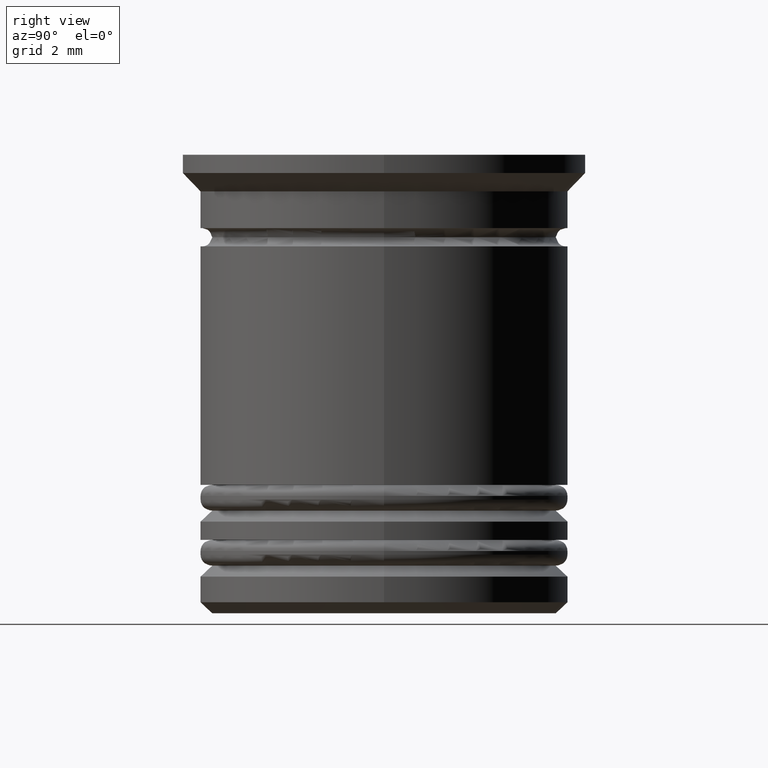
[diagram: clean part render]
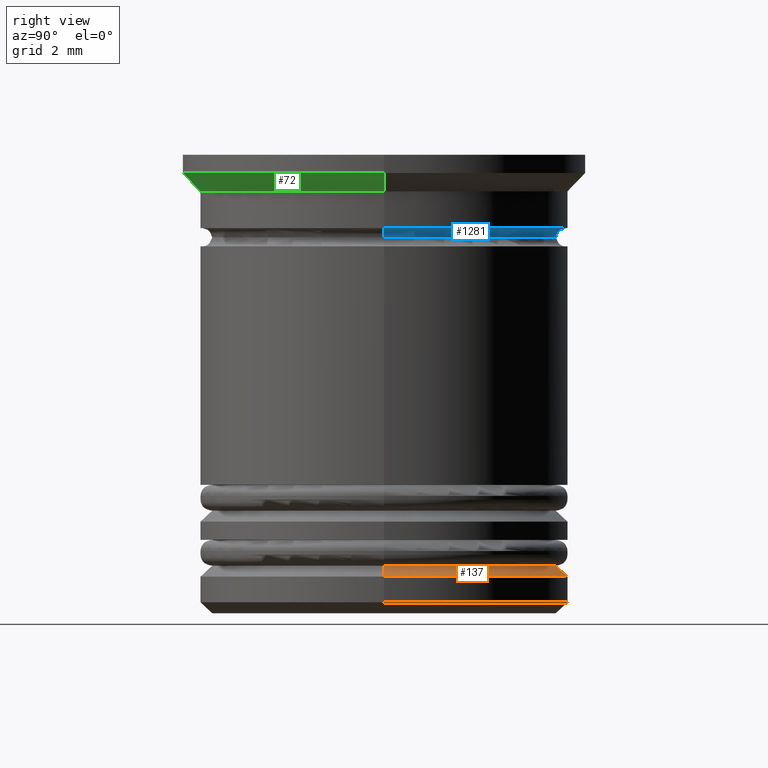
[diagram: same view with three faces highlighted in distinct colors, each labeled with its STEP entity id]
A machine part, right view with three faces highlighted in distinct colors.
Their STEP definitions:

[orange] entity #137 — the highlighted conical surface has half-angle 45 deg.
#82 = EDGE_LOOP ( 'NONE', ( #812, #1409, #1275, #1447 ) ) ;
#137 = ADVANCED_FACE ( 'NONE', ( #1843 ), #2029, .T. ) ;
#156 = VECTOR ( 'NONE', #1939, 1000.000000000000000 ) ;
#166 = LINE ( 'NONE', #1321, #762 ) ;
#205 = CARTESIAN_POINT ( 'NONE',  ( 0.000000000000000000, 0.000000000000000000, -11.20000000000000817 ) ) ;
#301 = CARTESIAN_POINT ( 'NONE',  ( 5.000000000000000888, 0.000000000000000000, -11.50000000000000533 ) ) ;
#317 = CARTESIAN_POINT ( 'NONE',  ( -4.700000000000001066, 5.755839955992560641E-16, -11.20000000000000817 ) ) ;
#392 = CARTESIAN_POINT ( 'NONE',  ( 0.000000000000000000, 0.000000000000000000, -11.00000000000000178 ) ) ;
#435 = EDGE_CURVE ( 'NONE', #1457, #1701, #474, .T. ) ;
#456 = CIRCLE ( 'NONE', #1904, 4.700000000000001066 ) ;
#474 = LINE ( 'NONE', #1622, #156 ) ;
#597 = EDGE_CURVE ( 'NONE', #2033, #1654, #166, .T. ) ;
#608 = CARTESIAN_POINT ( 'NONE',  ( 4.700000000000001066, 0.000000000000000000, -11.20000000000000817 ) ) ;
#637 = DIRECTION ( 'NONE',  ( -0.000000000000000000, -0.000000000000000000, 1.000000000000000000 ) ) ;
#730 = DIRECTION ( 'NONE',  ( 0.000000000000000000, 0.000000000000000000, -1.000000000000000000 ) ) ;
#762 = VECTOR ( 'NONE', #1949, 1000.000000000000000 ) ;
#812 = ORIENTED_EDGE ( 'NONE', *, *, #1153, .F. ) ;
#863 = EDGE_CURVE ( 'NONE', #1701, #1654, #1500, .T. ) ;
#971 = AXIS2_PLACEMENT_3D ( 'NONE', #1847, #730, #1080 ) ;
#1062 = AXIS2_PLACEMENT_3D ( 'NONE', #392, #1853, #1862 ) ;
#1080 = DIRECTION ( 'NONE',  ( -1.000000000000000000, 0.000000000000000000, 0.000000000000000000 ) ) ;
#1153 = EDGE_CURVE ( 'NONE', #2033, #1457, #456, .T. ) ;
#1275 = ORIENTED_EDGE ( 'NONE', *, *, #863, .F. ) ;
#1321 = CARTESIAN_POINT ( 'NONE',  ( 4.499999999999992006, 5.510910596163078709E-16, -11.00000000000000178 ) ) ;
#1409 = ORIENTED_EDGE ( 'NONE', *, *, #597, .T. ) ;
#1447 = ORIENTED_EDGE ( 'NONE', *, *, #435, .F. ) ;
#1452 = DIRECTION ( 'NONE',  ( -1.000000000000000000, 0.000000000000000000, 0.000000000000000000 ) ) ;
#1457 = VERTEX_POINT ( 'NONE', #317 ) ;
#1500 = CIRCLE ( 'NONE', #971, 5.000000000000000888 ) ;
#1622 = CARTESIAN_POINT ( 'NONE',  ( -4.499999999999992006, 0.000000000000000000, -11.00000000000000178 ) ) ;
#1654 = VERTEX_POINT ( 'NONE', #301 ) ;
#1701 = VERTEX_POINT ( 'NONE', #1795 ) ;
#1795 = CARTESIAN_POINT ( 'NONE',  ( -5.000000000000000888, 6.123233995736767268E-16, -11.50000000000000533 ) ) ;
#1843 = FACE_OUTER_BOUND ( 'NONE', #82, .T. ) ;
#1847 = CARTESIAN_POINT ( 'NONE',  ( 0.000000000000000000, 0.000000000000000000, -11.50000000000000533 ) ) ;
#1853 = DIRECTION ( 'NONE',  ( 0.000000000000000000, 0.000000000000000000, -1.000000000000000000 ) ) ;
#1862 = DIRECTION ( 'NONE',  ( -1.000000000000000000, 0.000000000000000000, 0.000000000000000000 ) ) ;
#1904 = AXIS2_PLACEMENT_3D ( 'NONE', #205, #637, #1452 ) ;
#1939 = DIRECTION ( 'NONE',  ( -0.7071067811865512365, 0.000000000000000000, -0.7071067811865439090 ) ) ;
#1949 = DIRECTION ( 'NONE',  ( 0.7071067811865512365, 8.659560562354978464E-17, -0.7071067811865439090 ) ) ;
#2029 = CONICAL_SURFACE ( 'NONE', #1062, 4.499999999999992006, 0.7853981633974533860 ) ;
#2033 = VERTEX_POINT ( 'NONE', #608 ) ;

[blue] entity #1281 — the highlighted toroidal blend (fillet) surface has major radius 4.95 mm and minor (blend) radius 0.25 mm.
#27 = AXIS2_PLACEMENT_3D ( 'NONE', #1078, #245, #890 ) ;
#91 = AXIS2_PLACEMENT_3D ( 'NONE', #1681, #228, #882 ) ;
#101 = VERTEX_POINT ( 'NONE', #707 ) ;
#116 = VERTEX_POINT ( 'NONE', #719 ) ;
#228 = DIRECTION ( 'NONE',  ( -0.000000000000000000, -0.000000000000000000, 1.000000000000000000 ) ) ;
#235 = EDGE_CURVE ( 'NONE', #1221, #335, #899, .T. ) ;
#236 = DIRECTION ( 'NONE',  ( 0.000000000000000000, 0.000000000000000000, -1.000000000000000000 ) ) ;
#245 = DIRECTION ( 'NONE',  ( -0.000000000000000000, -0.000000000000000000, 1.000000000000000000 ) ) ;
#258 = DIRECTION ( 'NONE',  ( -0.000000000000000000, -0.000000000000000000, 1.000000000000000000 ) ) ;
#335 = VERTEX_POINT ( 'NONE', #1543 ) ;
#599 = CARTESIAN_POINT ( 'NONE',  ( -4.950000000000000178, 6.062001655779398511E-16, -2.250000000000000444 ) ) ;
#670 = CARTESIAN_POINT ( 'NONE',  ( 4.950000000000000178, 0.000000000000000000, -2.000000000000000000 ) ) ;
#707 = CARTESIAN_POINT ( 'NONE',  ( -4.700000000000000178, 5.755839955992559655E-16, -2.250000000000000444 ) ) ;
#719 = CARTESIAN_POINT ( 'NONE',  ( -4.950000000000000178, 6.062001655779398511E-16, -2.000000000000000000 ) ) ;
#808 = EDGE_CURVE ( 'NONE', #116, #101, #1873, .T. ) ;
#882 = DIRECTION ( 'NONE',  ( 1.000000000000000000, 0.000000000000000000, 0.000000000000000000 ) ) ;
#890 = DIRECTION ( 'NONE',  ( 1.000000000000000000, 0.000000000000000000, 0.000000000000000000 ) ) ;
#899 = CIRCLE ( 'NONE', #966, 0.2500000000000002220 ) ;
#917 = EDGE_CURVE ( 'NONE', #335, #101, #1311, .T. ) ;
#966 = AXIS2_PLACEMENT_3D ( 'NONE', #1340, #1045, #236 ) ;
#974 = TOROIDAL_SURFACE ( 'NONE', #27, 4.950000000000000178, 0.2500000000000002220 ) ;
#997 = DIRECTION ( 'NONE',  ( -1.000000000000000000, 1.224646799147353454E-16, 0.000000000000000000 ) ) ;
#1045 = DIRECTION ( 'NONE',  ( 0.000000000000000000, -1.000000000000000000, 0.000000000000000000 ) ) ;
#1078 = CARTESIAN_POINT ( 'NONE',  ( 0.000000000000000000, 0.000000000000000000, -2.250000000000000444 ) ) ;
#1221 = VERTEX_POINT ( 'NONE', #670 ) ;
#1227 = FACE_OUTER_BOUND ( 'NONE', #1988, .T. ) ;
#1229 = AXIS2_PLACEMENT_3D ( 'NONE', #1539, #258, #1826 ) ;
#1247 = ORIENTED_EDGE ( 'NONE', *, *, #1941, .F. ) ;
#1258 = ORIENTED_EDGE ( 'NONE', *, *, #235, .T. ) ;
#1281 = ADVANCED_FACE ( 'NONE', ( #1227 ), #974, .F. ) ;
#1311 = CIRCLE ( 'NONE', #91, 4.700000000000000178 ) ;
#1340 = CARTESIAN_POINT ( 'NONE',  ( 4.950000000000000178, 0.000000000000000000, -2.250000000000000444 ) ) ;
#1539 = CARTESIAN_POINT ( 'NONE',  ( 0.000000000000000000, 0.000000000000000000, -2.000000000000000000 ) ) ;
#1543 = CARTESIAN_POINT ( 'NONE',  ( 4.700000000000000178, 0.000000000000000000, -2.250000000000000444 ) ) ;
#1661 = ORIENTED_EDGE ( 'NONE', *, *, #808, .F. ) ;
#1681 = CARTESIAN_POINT ( 'NONE',  ( 0.000000000000000000, 0.000000000000000000, -2.250000000000000444 ) ) ;
#1744 = AXIS2_PLACEMENT_3D ( 'NONE', #599, #1889, #997 ) ;
#1826 = DIRECTION ( 'NONE',  ( 1.000000000000000000, 0.000000000000000000, 0.000000000000000000 ) ) ;
#1837 = ORIENTED_EDGE ( 'NONE', *, *, #917, .T. ) ;
#1873 = CIRCLE ( 'NONE', #1744, 0.2500000000000002220 ) ;
#1889 = DIRECTION ( 'NONE',  ( 1.224646799147353207E-16, 1.000000000000000000, 0.000000000000000000 ) ) ;
#1941 = EDGE_CURVE ( 'NONE', #1221, #116, #2019, .T. ) ;
#1988 = EDGE_LOOP ( 'NONE', ( #1258, #1837, #1661, #1247 ) ) ;
#2019 = CIRCLE ( 'NONE', #1229, 4.950000000000000178 ) ;

[green] entity #72 — the highlighted conical surface has half-angle 45 deg.
#31 = CARTESIAN_POINT ( 'NONE',  ( 0.000000000000000000, 0.000000000000000000, -0.9999999999999997780 ) ) ;
#47 = AXIS2_PLACEMENT_3D ( 'NONE', #1166, #1792, #339 ) ;
#67 = ORIENTED_EDGE ( 'NONE', *, *, #1488, .T. ) ;
#72 = ADVANCED_FACE ( 'NONE', ( #179 ), #1135, .T. ) ;
#90 = CARTESIAN_POINT ( 'NONE',  ( 0.000000000000000000, 0.000000000000000000, -0.4999999999999976130 ) ) ;
#158 = CIRCLE ( 'NONE', #417, 4.999999999999999112 ) ;
#179 = FACE_OUTER_BOUND ( 'NONE', #1424, .T. ) ;
#184 = DIRECTION ( 'NONE',  ( 1.000000000000000000, 0.000000000000000000, 0.000000000000000000 ) ) ;
#257 = CARTESIAN_POINT ( 'NONE',  ( 4.999999999999999112, 0.000000000000000000, -0.9999999999999997780 ) ) ;
#286 = CARTESIAN_POINT ( 'NONE',  ( 5.500000000000000000, 0.000000000000000000, -0.4999999999999976130 ) ) ;
#336 = LINE ( 'NONE', #833, #1611 ) ;
#339 = DIRECTION ( 'NONE',  ( 1.000000000000000000, 0.000000000000000000, 0.000000000000000000 ) ) ;
#370 = CARTESIAN_POINT ( 'NONE',  ( -5.500000000000000000, 6.735557395310442023E-16, -0.4999999999999976130 ) ) ;
#388 = CARTESIAN_POINT ( 'NONE',  ( -4.999999999999999112, 6.123233995736765296E-16, -0.9999999999999997780 ) ) ;
#417 = AXIS2_PLACEMENT_3D ( 'NONE', #31, #1001, #184 ) ;
#555 = ORIENTED_EDGE ( 'NONE', *, *, #1582, .F. ) ;
#580 = DIRECTION ( 'NONE',  ( 0.7071067811865487940, 0.000000000000000000, 0.7071067811865463515 ) ) ;
#661 = VECTOR ( 'NONE', #580, 1000.000000000000000 ) ;
#677 = DIRECTION ( 'NONE',  ( -0.7071067811865487940, 8.659560562354948882E-17, 0.7071067811865463515 ) ) ;
#698 = AXIS2_PLACEMENT_3D ( 'NONE', #90, #713, #885 ) ;
#699 = VERTEX_POINT ( 'NONE', #388 ) ;
#713 = DIRECTION ( 'NONE',  ( -0.000000000000000000, -0.000000000000000000, 1.000000000000000000 ) ) ;
#833 = CARTESIAN_POINT ( 'NONE',  ( -5.500000000000000000, 6.735557395310442023E-16, -0.4999999999999976130 ) ) ;
#885 = DIRECTION ( 'NONE',  ( -1.000000000000000000, 0.000000000000000000, 0.000000000000000000 ) ) ;
#887 = VERTEX_POINT ( 'NONE', #257 ) ;
#1001 = DIRECTION ( 'NONE',  ( -0.000000000000000000, -0.000000000000000000, 1.000000000000000000 ) ) ;
#1015 = EDGE_CURVE ( 'NONE', #887, #1367, #1884, .T. ) ;
#1072 = ORIENTED_EDGE ( 'NONE', *, *, #1494, .F. ) ;
#1135 = CONICAL_SURFACE ( 'NONE', #47, 5.500000000000000000, 0.7853981633974500554 ) ;
#1166 = CARTESIAN_POINT ( 'NONE',  ( 0.000000000000000000, 0.000000000000000000, -0.4999999999999976130 ) ) ;
#1367 = VERTEX_POINT ( 'NONE', #286 ) ;
#1424 = EDGE_LOOP ( 'NONE', ( #1072, #67, #1532, #555 ) ) ;
#1431 = CARTESIAN_POINT ( 'NONE',  ( 5.500000000000000000, 0.000000000000000000, -0.4999999999999976130 ) ) ;
#1488 = EDGE_CURVE ( 'NONE', #699, #887, #158, .T. ) ;
#1494 = EDGE_CURVE ( 'NONE', #699, #1891, #336, .T. ) ;
#1532 = ORIENTED_EDGE ( 'NONE', *, *, #1015, .T. ) ;
#1582 = EDGE_CURVE ( 'NONE', #1891, #1367, #1968, .T. ) ;
#1611 = VECTOR ( 'NONE', #677, 1000.000000000000000 ) ;
#1792 = DIRECTION ( 'NONE',  ( -0.000000000000000000, -0.000000000000000000, 1.000000000000000000 ) ) ;
#1884 = LINE ( 'NONE', #1431, #661 ) ;
#1891 = VERTEX_POINT ( 'NONE', #370 ) ;
#1968 = CIRCLE ( 'NONE', #698, 5.500000000000000000 ) ;